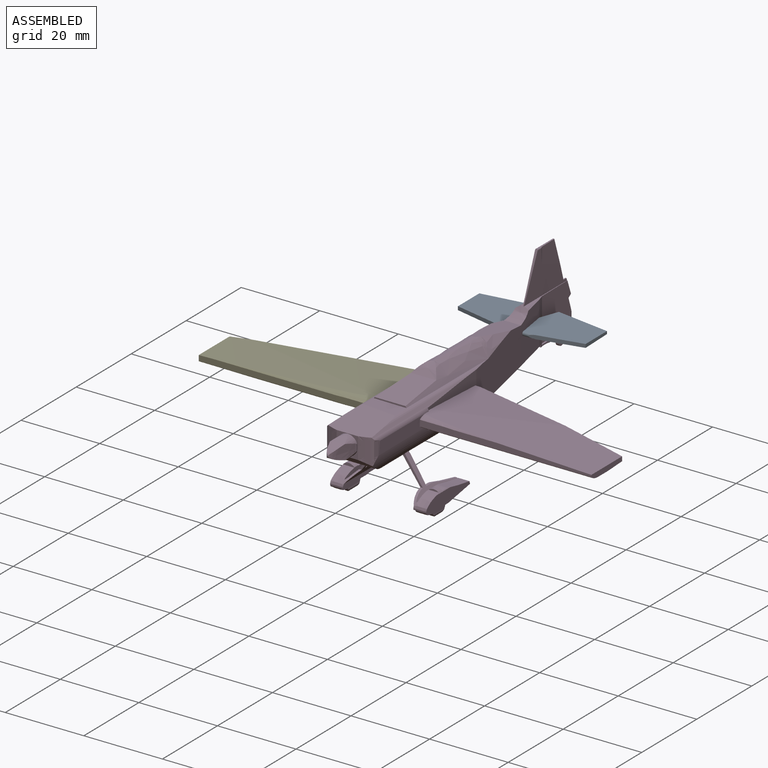
[diagram: assembled view]
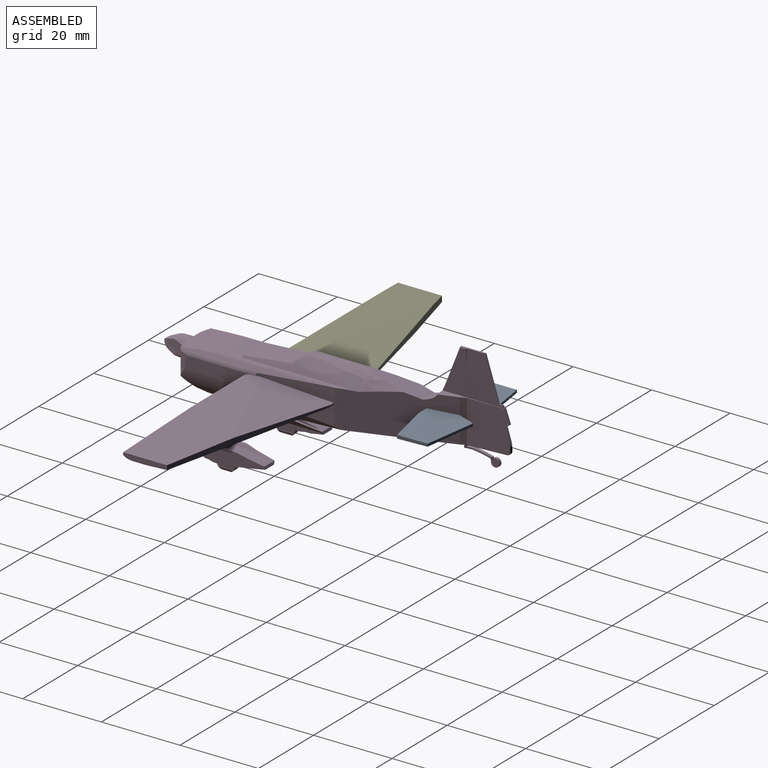
[diagram: assembled view, second angle]
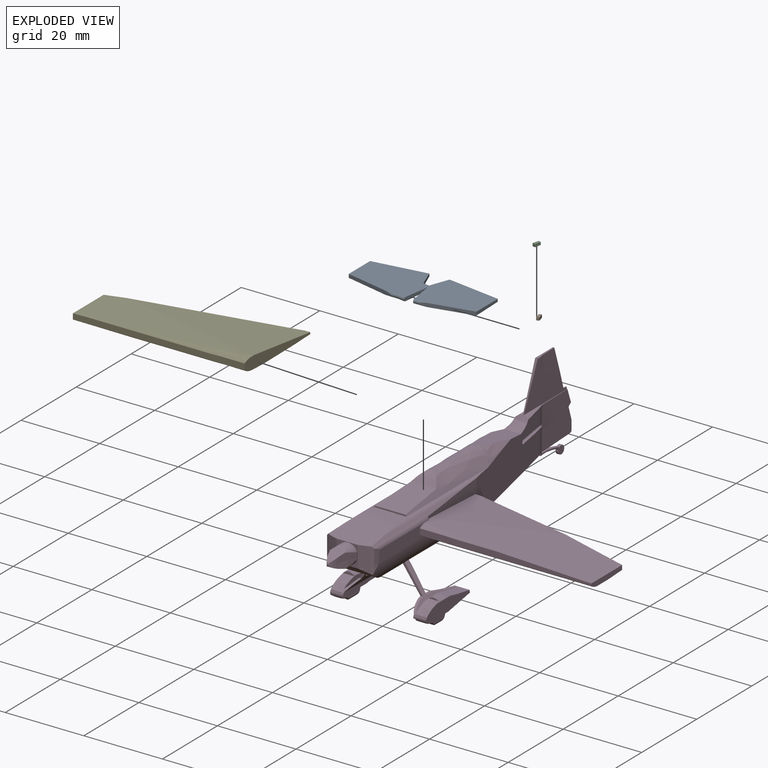
[diagram: exploded view]
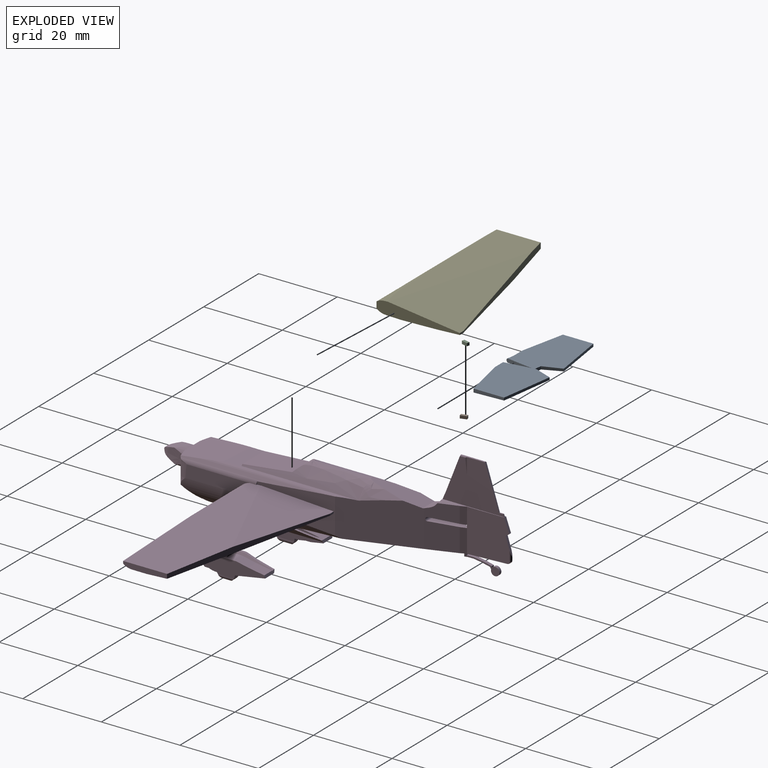
[diagram: exploded view, second angle]
ASSEMBLY  parts=5 mates=4
PART A: 18 faces, bbox 32.5x12.8x1 mm
  f0: plane 7.91x1.21mm, normal (-0.99,-0.15,0), area 6.2mm2, adj f4,f5,f6,f7,f15,f16,f17
  f1: plane 12.7x2.74mm, normal (0.21,-0.98,0), area 11.7mm2, adj f2,f5,f6,f7
  f2: plane 7.77x0.9mm, normal (1,0,0), area 6.1mm2, adj f1,f3,f6,f7
  f3: plane 13.66x2.03mm, normal (0.15,0.99,0), area 9mm2, adj f2,f4,f6,f7
  f4: plane 4.62x1.74mm, normal (-0.94,0.35,0), area 3.4mm2, adj f0,f3,f6,f7
  f5: cylinder r=0.51mm len=3.22mm, axis (-1,0,0), area 2.6mm2, adj f0,f1,f6,f7
  f6: plane 32.5x12.5mm, normal (0,0,1), area 319.6mm2, adj f0,f1,f2,f3,f4,f5,f8,f9
  f7: plane 15.4x12.17mm, normal (0,0.03,-1), area 152.2mm2, adj f0,f1,f2,f3,f4,f5
  f8: plane 12.7x2.74mm, normal (-0.21,-0.98,0), area 11.7mm2, adj f6,f11,f12,f13
  f9: plane 4.62x1.74mm, normal (0.94,0.35,0), area 3.4mm2, adj f6,f10,f13,f16
  f10: plane 13.66x2.03mm, normal (-0.15,0.99,0), area 9mm2, adj f6,f9,f11,f13
  f11: plane 7.77x0.9mm, normal (-1,0,0), area 6.1mm2, adj f6,f8,f10,f13
  f12: cylinder r=0.51mm len=3.22mm, axis (-1,0,0), area 2.6mm2, adj f6,f8,f13,f14
  f13: plane 15.4x12.17mm, normal (0,0.03,-1), area 152.2mm2, adj f8,f9,f10,f11,f12,f15
  f14: extruded ~2.03x0.96mm, area 2.6mm2, adj f6,f12,f15,f17
  f15: plane 7.85x3.02mm, normal (0,0.03,-1), area 15.2mm2, adj f0,f13,f14,f16,f17
  f16: plane 1.73x0.75mm, normal (0.15,0.99,0), area 1.3mm2, adj f0,f6,f9,f15
  f17: plane 7.13x1.09mm, normal (0.99,-0.15,0), area 6.2mm2, adj f0,f6,f14,f15
PART B: 6 faces, bbox 1.1x1.7x0.8 mm
  f0: plane 0.71x0.68mm, normal (-0.25,0.97,0), area 0.5mm2, adj f1,f3,f4,f5
  f1: plane 1.75x1.08mm, normal (0,0,1), area 1.1mm2, adj f0,f2,f4,f5
  f2: plane 0.75x0.68mm, normal (0.25,-0.97,0), area 0.5mm2, adj f1,f3,f4,f5
  f3: plane 1.75x1.08mm, normal (-0.01,0.03,-1), area 1.1mm2, adj f0,f2,f4,f5
  f4: plane 1.57x0.75mm, normal (-0.97,-0.25,0), area 1.2mm2, adj f0,f1,f2,f3
  f5: plane 1.57x0.75mm, normal (0.97,0.25,0), area 1.2mm2, adj f0,f1,f2,f3
PART C: 6 faces, bbox 1.1x1.7x0.8 mm
  f0: plane 1.75x1.08mm, normal (0.01,0.03,-1), area 1.1mm2, adj f1,f3,f4,f5
  f1: plane 0.75x0.68mm, normal (-0.25,-0.97,0), area 0.5mm2, adj f0,f2,f4,f5
  f2: plane 1.75x1.08mm, normal (0,0,1), area 1.1mm2, adj f1,f3,f4,f5
  f3: plane 0.71x0.68mm, normal (0.25,0.97,-0.01), area 0.5mm2, adj f0,f2,f4,f5
  f4: plane 1.57x0.75mm, normal (0.97,-0.25,0), area 1.2mm2, adj f0,f1,f2,f3
  f5: plane 1.57x0.75mm, normal (-0.97,0.25,0), area 1.2mm2, adj f0,f1,f2,f3
PART D: 174 faces, bbox 64.9x91.3x41.2 mm
  f0: plane 6.74x5.55mm, normal (0,-1,0), area 4.9mm2, adj f2,f6,f12,f75,f122
  f1: plane 1.52x1.01mm, normal (0,1,0.07), area 0.8mm2, adj f2,f10,f12,f75,f122
  f2: plane 15.52x8.64mm, normal (0.8,0,-0.59), area 37.2mm2, adj f0,f1,f6,f7,f8,f10,f23,f75
  f3: cylinder r=2.38mm len=1.68mm, axis (-1,0,0), area 2mm2, adj f6,f17,f18,f19
  f4: cylinder r=2.38mm len=1.85mm, axis (-1,0,0), area 3.2mm2, adj f5,f17,f18,f19
  f5: plane 8.07x3.28mm, normal (0,0.17,-0.98), area 22.8mm2, adj f4,f7,f15,f16,f17,f19,f20,f21
  f6: extruded ~4.72x4.71mm, area 27.2mm2, adj f0,f2,f3,f9,f12,f13,f14,f15
  f7: plane 3.6x0.69mm, normal (0,0.96,0.3), area 2.4mm2, adj f2,f5,f8,f15,f23
  f8: extruded ~9.69x4.72mm, area 34.3mm2, adj f2,f7,f10,f11,f12,f13,f14,f15
  f9: plane 2.88x0.69mm, normal (0,-1,0), area 1.4mm2, adj f6,f14,f15,f24
  f10: plane 5.76x4.87mm, normal (0,1,-0.04), area 4.1mm2, adj f1,f2,f8,f12
  f11: plane 2.93x0.78mm, normal (0,1,-0.04), area 1.6mm2, adj f8,f14,f15,f24
  f12: plane 13.86x8.12mm, normal (-0.82,0,0.58), area 26.3mm2, adj f0,f1,f6,f8,f10,f13,f122
  f13: plane 13.86x0.25mm, normal (0,0,1), area 3.4mm2, adj f6,f8,f12,f14
  f14: plane 13.92x1.48mm, normal (1,0,0), area 12mm2, adj f6,f8,f9,f11,f13,f24
  f15: plane 15.93x3.44mm, normal (-1,0,0), area 38.9mm2, adj f5,f6,f7,f8,f9,f11,f16,f24
  f16: plane 9.15x0.58mm, normal (0,0,-1), area 5.3mm2, adj f5,f6,f15,f17
  f17: plane 9.16x1.15mm, normal (-1,0,0), area 7.5mm2, adj f3,f4,f5,f6,f16,f18
  f18: cylinder r=0.84mm len=4.36mm, axis (0,-1,0), area 12.9mm2, adj f3,f4,f17,f19
  f19: plane 9.16x1.11mm, normal (1,0,0), area 7.3mm2, adj f3,f4,f5,f6,f18,f20
  f20: plane 9.15x0.58mm, normal (0,0,-1), area 5.3mm2, adj f5,f6,f19,f21
  f21: plane 12.58x0.57mm, normal (1,0,0), area 6.1mm2, adj f5,f6,f20,f22
  f22: plane 12.58x0.48mm, normal (0,0,-1), area 6mm2, adj f5,f6,f21,f23
  f23: plane 15.92x0.86mm, normal (1,0,0), area 12.3mm2, adj f2,f5,f6,f7,f22
  f24: cylinder r=1.96mm len=2.88mm, axis (0,-1,0), area 4.2mm2, adj f9,f11,f14,f15
  f25: plane 11.44x0.48mm, normal (-0.02,0,-1), area 5.4mm2, adj f26,f29,f39,f44
  f26: plane 11.45x0.62mm, normal (-1,0,0.02), area 5.4mm2, adj f25,f27,f39,f44
  f27: plane 7.76x0.58mm, normal (-0.02,0,-1), area 4.5mm2, adj f26,f36,f39,f44
  f28: plane 7.49x0.58mm, normal (-0.02,0,-1), area 4.3mm2, adj f31,f38,f39,f44
  f29: plane 15.93x0.86mm, normal (-1,0,0.02), area 11.6mm2, adj f25,f34,f39,f44,f45
  f30: plane 15.01x0.25mm, normal (0.02,0,1), area 3.7mm2, adj f32,f35,f39,f45
  f31: plane 16.63x4.14mm, normal (1,0,-0.02), area 40.2mm2, adj f28,f33,f39,f40,f44,f45
  f32: plane 15.88x2.32mm, normal (-1,0,0.02), area 14.4mm2, adj f30,f33,f39,f40,f45
  f33: cylinder r=1.96mm len=4.91mm, axis (0,-1,0), area 5.3mm2, adj f31,f32,f39,f40,f41,f42
  f34: plane 15.73x8.78mm, normal (-0.81,0,-0.58), area 40.4mm2, adj f29,f39,f45,f46,f47,f48,f49,f76
  f35: plane 15x8.32mm, normal (0.83,0,0.56), area 29.5mm2, adj f30,f39,f45,f46,f47,f48,f49,f121
  f36: plane 7.86x1.27mm, normal (-1,0,0.02), area 6.4mm2, adj f27,f37,f39,f43,f44,f50
  f37: cylinder r=0.84mm len=4.14mm, axis (0,-1,0), area 8.5mm2, adj f36,f38,f43,f50
  f38: plane 7.64x1.29mm, normal (1,0,-0.02), area 6.5mm2, adj f28,f37,f39,f43,f44,f50
  f39: extruded ~4.84x4.71mm, area 27.6mm2, adj f25,f26,f27,f28,f29,f30,f31,f32
  f40: extruded ~9.69x2.9mm, area 28mm2, adj f31,f32,f33,f42,f45
  f41: plane 2.54x0.47mm, normal (0,-1,0), area 0.8mm2, adj f33,f39
  f42: plane 2.67x0.55mm, normal (0,1,-0.04), area 0.9mm2, adj f33,f40
  f43: cylinder r=2.38mm len=2.08mm, axis (-1,0,0), area 3.9mm2, adj f36,f37,f38,f44
  f44: plane 8.07x3.3mm, normal (0,0.17,-0.98), area 24.8mm2, adj f25,f26,f27,f28,f29,f31,f36,f38
  f45: plane 3.74x0.69mm, normal (0,0.96,0.3), area 2.5mm2, adj f29,f30,f31,f32,f34,f35,f40,f44
  f46: extruded ~9.69x1.64mm, area 5.8mm2, adj f34,f35,f45,f48
  f47: plane 6.74x5.35mm, normal (0,-1,0), area 4.8mm2, adj f34,f35,f39,f76,f121
  f48: plane 5.76x4.72mm, normal (0,1,-0.04), area 4.1mm2, adj f34,f35,f46,f49
  f49: plane 1.46x1.02mm, normal (0,1,0.07), area 0.8mm2, adj f34,f35,f48,f76,f121
  f50: cylinder r=2.38mm len=1.68mm, axis (-1,0,0), area 2.7mm2, adj f36,f37,f38,f39
  f51: extruded ~15.78x2mm, area 24.5mm2, adj f52,f53,f58,f80,f173
  f52: extruded ~15.83x5.32mm, area 112mm2, adj f51,f57,f58,f80,f173
  f53: extruded ~6.93x3.76mm, area 17.9mm2, adj f51,f54,f55,f57
  f54: extruded ~6.53x3.44mm, area 15mm2, adj f53,f56,f57
  f55: extruded ~6.82x3.5mm, area 15.5mm2, adj f53,f56,f57
  f56: extruded ~6.66x3.51mm, area 15.2mm2, adj f54,f55,f57
  f57: cylinder r=2.51mm len=5.03mm, axis (0,-1,0), area 20.1mm2, adj f52,f53,f54,f55,f56
  f58: cylinder r=2.51mm len=15.44mm, axis (0,-1,0), area 136.8mm2, adj f51,f52,f80,f173
  f59: plane 14.49x13.73mm, normal (0,-0.09,1), area 115.6mm2, adj f67,f68,f71,f72,f73,f78,f79,f80
  f60: extruded ~11.51x7.55mm, area 79.7mm2, adj f65,f66,f69,f70,f74,f75,f76,f77
  f61: plane 18.29x3.45mm, normal (1,0,-0.02), area 49.5mm2, adj f62,f66,f78,f151,f158,f163,f165
  f62: cylinder r=1.73mm len=23.86mm, axis (0,-1,0), area 21.7mm2, adj f61,f67,f78,f98,f150,f161
  f63: cylinder r=1.73mm len=26.94mm, axis (0,-1,0), area 23.9mm2, adj f64,f68,f79,f103,f146,f147,f149
  f64: plane 18.85x3.27mm, normal (-1,0,0), area 53.9mm2, adj f63,f69,f79,f84,f146
  f65: plane 36.64x0.81mm, normal (0.71,0,-0.7), area 33.3mm2, adj f60,f66,f77,f81,f113,f121
  f66: cylinder r=9.26mm len=40.43mm, axis (0,-1,0), area 117mm2, adj f60,f61,f65,f78,f98,f113,f123,f151
  f67: plane 34.2x0.72mm, normal (0.79,0,0.62), area 25mm2, adj f59,f62,f71,f78,f98
  f68: plane 37.43x0.71mm, normal (-0.77,0,0.63), area 27.2mm2, adj f59,f63,f73,f79,f103
  f69: cylinder r=9.26mm len=40.86mm, axis (0,-1,0), area 121.3mm2, adj f60,f64,f70,f79,f84,f103,f113,f130
  f70: plane 37.67x0.82mm, normal (-0.73,0,-0.69), area 34.4mm2, adj f60,f69,f74,f82,f113,f122
  f71: cylinder r=1.25mm len=39.46mm, axis (0,-1,0), area 37.8mm2, adj f59,f67,f72,f98,f123,f138
  f72: plane 8.26x4.4mm, normal (0.01,0,1), area 33.1mm2, adj f59,f71,f73,f145
  f73: cylinder r=1.25mm len=39.81mm, axis (0,-1,0), area 37.8mm2, adj f59,f68,f72,f103,f130,f134
  f74: extruded ~9.32x0.8mm, area 8.2mm2, adj f60,f70,f75,f82
  f75: plane 20.69x3.16mm, normal (0,0,-1), area 64.4mm2, adj f0,f1,f2,f60,f74,f76,f82,f113
  f76: plane 20.7x3.16mm, normal (-0.02,0,-1), area 63.4mm2, adj f34,f47,f49,f60,f75,f77,f81,f113
  f77: extruded ~9.14x0.81mm, area 8mm2, adj f60,f65,f76,f81
  f78: extruded ~6.59x3.59mm, area 27.7mm2, adj f59,f60,f61,f62,f66,f67,f80
  f79: extruded ~6.54x3.44mm, area 23.4mm2, adj f59,f60,f63,f64,f68,f69,f80
  f80: plane 5.54x5.53mm, normal (0,-1,0), area 9.9mm2, adj f51,f52,f58,f59,f60,f78,f79
  f81: extruded ~0.81x0.46mm, area 0.3mm2, adj f65,f76,f77,f121
  f82: extruded ~0.8x0.48mm, area 0.3mm2, adj f70,f74,f75,f122
  f83: cylinder r=2.51mm len=3.63mm, axis (0,-1,0), area 3.5mm2, adj f144,f167,f171
  f84: plane 1.03x0.14mm, normal (0,1,0), area 0.1mm2, adj f64,f69,f103,f148
  f85: cylinder r=2.51mm len=3.65mm, axis (0,-1,0), area 8.4mm2, adj f144,f150,f172
  f86: plane 0.89x0.71mm, normal (0.01,-1,0), area 0.6mm2, adj f126,f128,f142,f143
  f87: plane 1.06x0.27mm, normal (0,0,1), area 0.3mm2, adj f90,f92,f93,f135
  f88: plane 4.08x0.4mm, normal (0.97,0.25,0), area 0.9mm2, adj f89,f93,f94
  f89: plane 6.79x6.61mm, normal (1,0.01,0), area 28.2mm2, adj f88,f90,f93,f94
  f90: plane 10.89x3.61mm, normal (0,0.95,0.31), area 4.8mm2, adj f87,f89,f92,f93,f94,f95
  f91: plane 9.49x3.87mm, normal (0,-0.93,0.37), area 5mm2, adj f92,f93,f94,f95,f139
  f92: plane 15.77x11.19mm, normal (-1,0,-0.01), area 117.4mm2, adj f87,f90,f91,f95,f132,f135,f139
  f93: plane 15.78x11.19mm, normal (1,0,-0.03), area 89.7mm2, adj f87,f88,f89,f90,f91,f94,f135,f137
  f94: cylinder r=0.33mm len=6.3mm, axis (0,-1,0), area 1.8mm2, adj f88,f89,f90,f91,f93,f95
  f95: cylinder r=0.33mm len=6.39mm, axis (0,-1,0), area 3.3mm2, adj f90,f91,f92,f94
  f96: cylinder r=2.21mm len=0.67mm, axis (-1,0,0), area 0.1mm2, adj f101,f104,f118
  f97: cylinder r=2.21mm len=0.67mm, axis (-1,0,0), area 0.1mm2, adj f101,f104,f117
  f98: plane 19.45x9.31mm, normal (1,0.05,0), area 103.6mm2, adj f62,f66,f67,f71,f106,f123,f144,f150
  f99: plane 6.63x1.57mm, normal (0.97,0.25,0), area 10mm2, adj f100,f107,f108,f109,f110,f111,f112,f113
  f100: plane 8.22x3.03mm, normal (1,0.01,0), area 6mm2, adj f99,f109,f110,f114,f115,f116,f119
  f101: cylinder r=0.63mm len=2.89mm, axis (0,0,-1), area 0.9mm2, adj f96,f97,f117,f118,f126
  f102: plane 6.63x1.57mm, normal (-0.97,0.25,0), area 10mm2, adj f105,f107,f108,f109,f110,f111,f112,f113
  f103: plane 19.16x8.83mm, normal (-1,0.05,0), area 97.5mm2, adj f63,f68,f69,f73,f84,f106,f130,f144
  f104: cylinder r=0.63mm len=2.89mm, axis (0,0,-1), area 0.9mm2, adj f96,f97,f117,f118,f128
  f105: plane 8.22x3.03mm, normal (-1,0.01,0), area 6mm2, adj f102,f109,f110,f114,f115,f116,f119
  f106: plane 9.99x0.45mm, normal (0,-1,0), area 4.4mm2, adj f98,f103,f144,f166
  f107: plane 1.19x0.67mm, normal (0,-1,0), area 0.8mm2, adj f99,f102,f108,f113
  f108: plane 1.19x0.48mm, normal (0,0,-1), area 0.5mm2, adj f99,f102,f107,f109
  f109: extruded ~5.98x0.94mm, area 5.1mm2, adj f99,f100,f102,f105,f108,f114
  f110: extruded ~6.38x0.96mm, area 5.4mm2, adj f99,f100,f102,f105,f111,f116
  f111: plane 0.96x0.31mm, normal (0,1,0.04), area 0.3mm2, adj f99,f102,f110,f112
  f112: plane 10.27x0.96mm, normal (0,0.04,-1), area 8.2mm2, adj f99,f102,f111,f117,f126,f128
  f113: plane 42.46x9.76mm, normal (0,0.09,-1), area 267.7mm2, adj f65,f66,f69,f70,f75,f76,f99,f102
  f114: plane 0.78x0.1mm, normal (0,-1,0), area 0.1mm2, adj f100,f105,f109,f115
  f115: plane 0.78x0.34mm, normal (0,-0.85,-0.53), area 0.3mm2, adj f100,f105,f114,f119
  f116: plane 0.77x0.39mm, normal (0,1,0), area 0.3mm2, adj f100,f105,f110,f119
  f117: cylinder r=1.09mm len=0.98mm, axis (-1,0,0), area 0.8mm2, adj f97,f101,f104,f112,f126,f128
  f118: plane 4.31x1.44mm, normal (0,0.95,0.31), area 2.9mm2, adj f96,f101,f104,f126,f128,f136
  f119: cylinder r=1.07mm len=2.13mm, axis (-1,0,0), area 4.9mm2, adj f100,f105,f115,f116
  f120: cylinder r=0.51mm len=4.01mm, axis (-1,0,0), area 5.1mm2, adj f124,f127,f142,f143
  f121: extruded ~17.11x0.81mm, area 13.4mm2, adj f35,f47,f49,f65,f76,f81,f113
  f122: extruded ~17.85x0.8mm, area 13.8mm2, adj f0,f1,f12,f70,f75,f82,f113
  f123: plane 20.91x12.06mm, normal (0.99,0.14,0), area 203.4mm2, adj f66,f71,f98,f113,f124,f138,f139,f140
  f124: plane 11.72x8.33mm, normal (0.99,0.15,0), area 80.7mm2, adj f99,f113,f120,f123,f125,f137,f139,f142
  f125: plane 4.23x1.6mm, normal (0.97,0.25,0), area 6.8mm2, adj f124,f126,f137,f142
  f126: plane 10.85x10.78mm, normal (1,0.01,0), area 110.1mm2, adj f86,f99,f101,f112,f117,f118,f125,f135
  f127: plane 11.64x8.33mm, normal (-0.99,0.15,0), area 80.1mm2, adj f102,f113,f120,f129,f130,f132,f139,f142
  f128: plane 10.83x10.79mm, normal (-1,0.01,0), area 109.9mm2, adj f86,f102,f104,f112,f117,f118,f129,f132
  f129: plane 4.19x1.59mm, normal (-0.97,0.25,0), area 6.7mm2, adj f127,f128,f132,f142
  f130: plane 21.21x12.22mm, normal (-0.99,0.14,0), area 200.8mm2, adj f69,f73,f103,f113,f127,f134,f139,f140
  f131: plane 14.66x0.25mm, normal (0.01,0,1), area 3.6mm2, adj f133,f134,f138,f140
  f132: extruded ~16.17x1.65mm, area 11.2mm2, adj f92,f127,f128,f129,f135,f139
  f133: extruded ~6.42x3.36mm, area 16.5mm2, adj f131,f134,f138,f141
  f134: extruded ~40.74x4.04mm, area 136.2mm2, adj f73,f130,f131,f133,f140,f141,f145
  f135: plane 4.18x1.56mm, normal (0,0.94,0.35), area 2.8mm2, adj f87,f92,f93,f126,f128,f132,f136,f137
  f136: plane 0.91x0.7mm, normal (0,0.57,-0.82), area 0.8mm2, adj f118,f126,f128,f135
  f137: extruded ~16.04x1.38mm, area 7mm2, adj f93,f124,f125,f126,f135,f139
  f138: extruded ~40.07x3.97mm, area 134.3mm2, adj f71,f123,f131,f133,f140,f141,f145
  f139: extruded ~4.62x4.46mm, area 16.8mm2, adj f91,f92,f93,f123,f124,f127,f130,f132
  f140: plane 14.45x5.48mm, normal (0,0.17,0.99), area 59.2mm2, adj f123,f130,f131,f134,f138,f139
  f141: plane 12.21x7.83mm, normal (0,-0.09,1), area 87.4mm2, adj f133,f134,f138,f145
  f142: plane 9.14x4.01mm, normal (0,0,-1), area 23.6mm2, adj f86,f120,f124,f125,f127,f128,f129
  f143: plane 9.12x4.01mm, normal (0,-0.03,1), area 23.5mm2, adj f86,f99,f102,f120,f124,f127
  f144: extruded ~22.45x12.06mm, area 195.2mm2, adj f83,f85,f98,f103,f106,f150,f167,f169
  f145: plane 8.26x0.4mm, normal (0,-1,0), area 2.9mm2, adj f72,f134,f138,f141
  f146: plane 3.21x2.54mm, normal (-1,0,0), area 7.6mm2, adj f63,f64,f147,f148
  f147: plane 0.21x0.02mm, normal (-1,0,0), area 0mm2, adj f63,f146,f149
  f148: plane 3.18x0.14mm, normal (0,1,0), area 0.4mm2, adj f84,f146,f149,f167
  f149: plane 0.44x0.14mm, normal (0,1,0), area 0mm2, adj f63,f103,f147,f148
  f150: plane 4.29x3.79mm, normal (0,1,0), area 11.4mm2, adj f62,f85,f98,f144,f153,f156,f166,f168
  f151: plane 1.46x0.23mm, normal (0,1,0), area 0.2mm2, adj f61,f66,f98,f154
  f152: plane 1.29x0.47mm, normal (0,1,0), area 0.6mm2, adj f98,f154,f155,f156,f159
  f153: plane 0.97x0.34mm, normal (0.02,0,1), area 0.3mm2, adj f98,f150,f155,f156,f161
  f154: extruded ~18.8x1.31mm, area 14.3mm2, adj f151,f152,f156,f163
  f155: plane 17.82x1.6mm, normal (0.02,0.09,1), area 14.6mm2, adj f98,f152,f153,f157
  f156: plane 18.8x3.11mm, normal (-1,-0.05,0), area 36.1mm2, adj f150,f152,f153,f154,f166
  f157: plane 26.18x17.82mm, normal (0,0.09,1), area 234.1mm2, adj f155,f159,f161
  f158: extruded ~19.57x1.73mm, area 16.9mm2, adj f61,f160,f161,f162,f165
  f159: plane 45.14x12.34mm, normal (0.24,0.97,0), area 51.3mm2, adj f152,f157,f161,f163,f164
  f160: plane 34.96x1.49mm, normal (0,-1,0), area 40.7mm2, adj f158,f161,f162,f163,f164
  f161: plane 44.16x16.05mm, normal (0.04,0,1), area 482.5mm2, adj f62,f153,f157,f158,f159,f160,f164
  f162: plane 2.81x1.58mm, normal (-0.02,-1,0), area 4.3mm2, adj f158,f160,f163,f165
  f163: extruded ~43.74x22.11mm, area 718.9mm2, adj f61,f154,f159,f160,f162,f164,f165
  f164: plane 11.22x1.43mm, normal (1,0,0), area 14.3mm2, adj f159,f160,f161,f163
  f165: plane 5.95x1.58mm, normal (0,-1,0), area 9.4mm2, adj f61,f158,f162,f163
  f166: plane 18.81x12.07mm, normal (0,-0.09,-1), area 189.3mm2, adj f98,f103,f106,f150,f156,f167,f168,f169
  f167: plane 4.26x3.19mm, normal (0,1,0), area 12mm2, adj f83,f144,f148,f166,f171
  f168: extruded ~2.57x0.32mm, area 0.4mm2, adj f150,f166,f172
  f169: plane 4.9x2.74mm, normal (0,1,0.02), area 12.3mm2, adj f144,f166,f170,f171,f172
  f170: extruded ~7.64x1.38mm, area 8.9mm2, adj f144,f169,f172
  f171: extruded ~7.79x3.36mm, area 20mm2, adj f83,f144,f166,f167,f169
  f172: extruded ~7.76x1.85mm, area 11.6mm2, adj f85,f144,f150,f166,f168,f169,f170
  f173: plane 5.1x3.46mm, normal (0,-1,0), area 1.6mm2, adj f51,f52,f58
PART E: 19 faces, bbox 45.1x22.3x3.3 mm
  f0: plane 3.2x2.52mm, normal (1,-0.05,0), area 7.6mm2, adj f1,f2,f3,f10,f17,f18
  f1: plane 2.62x0.88mm, normal (1,-0.05,0), area 1.6mm2, adj f0,f9,f13,f15
  f2: plane 0.21x0.14mm, normal (0,0.09,1), area 0mm2, adj f0,f14,f17
  f3: extruded ~2.52x0.34mm, area 0.2mm2, adj f0,f13,f16
  f4: plane 43.78x12.46mm, normal (-0.02,0,1), area 328.4mm2, adj f5,f7,f11,f14,f15,f17
  f5: plane 11.21x1.44mm, normal (-1,0,0), area 16.1mm2, adj f4,f6,f7,f11,f13
  f6: plane 41.22x15.05mm, normal (-0.02,0,-1), area 445.2mm2, adj f5,f11,f13
  f7: plane 34.91x1.49mm, normal (0,-1,0), area 51.7mm2, adj f4,f5,f8,f13,f15
  f8: plane 2.81x1.58mm, normal (0.02,-1,0), area 4.3mm2, adj f7,f9,f13,f15
  f9: plane 6.01x1.58mm, normal (0,-1,0), area 9.5mm2, adj f1,f8,f13,f15
  f10: plane 18.81x3.19mm, normal (1,-0.05,0), area 36.3mm2, adj f0,f12,f14,f16
  f11: plane 43.7x10.91mm, normal (-0.24,0.97,0), area 56mm2, adj f4,f5,f6,f12,f13,f14
  f12: plane 1.26x0.45mm, normal (0,1,0), area 0.6mm2, adj f10,f11,f13,f14,f16
  f13: extruded ~43.78x22.12mm, area 301.4mm2, adj f1,f3,f5,f6,f7,f8,f9,f11
  f14: plane 39.93x19.02mm, normal (0,0.09,1), area 382.8mm2, adj f2,f4,f10,f11,f12
  f15: extruded ~39.85x2.92mm, area 37.3mm2, adj f1,f4,f7,f8,f9,f18
  f16: extruded ~18.81x1.17mm, area 12.4mm2, adj f3,f10,f12,f13
  f17: plane 0.18x0.13mm, normal (0,0,1), area 0mm2, adj f0,f2,f4,f18
  f18: extruded ~2.13x0.37mm, area 0.1mm2, adj f0,f15,f17
PLACE A at identity
PLACE B at identity
PLACE C at identity
PLACE D at identity
PLACE E at identity
MATE fastened C.f2 <-> D.f142  axis (0,0,1) through (-0.85,75.82,3.24)mm
MATE fastened E.f10 <-> D.f103  axis (1,-0.05,0) through (-5,46.65,-0.15)mm
MATE fastened B.f1 <-> D.f142  axis (0,0,1) through (0.44,77.39,3.24)mm
MATE fastened A.f6 <-> D.f142  axis (0,0,1) through (-0.85,75.82,3.24)mm
